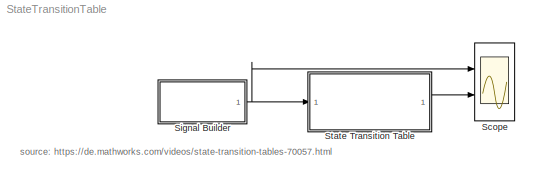
MODEL StateTransitionTable
KIND model
BLOCK [Scope] Scope
  NumInputPorts = 2
  Ports = [2]
  SID = 4
  ScopeSpecificationString = Simulink.scopes.TimeScopeBlockCfg('CurrentConfiguration', extmgr.ConfigurationSet(extmgr.Configuration('Core','General UI',true),extmgr.Configuration('Core','Source UI',true),extmgr.Configuration('Sources','WiredSimulink',true),extmgr.Configuration('Visuals','Time Domain',true,'SerializedDisplays',{struct('MinYLimReal','-1.25','MaxYLimReal','1.25','YLabelReal','','MinYLimMag','0.00000','MaxYLimMag...<+1382ch>
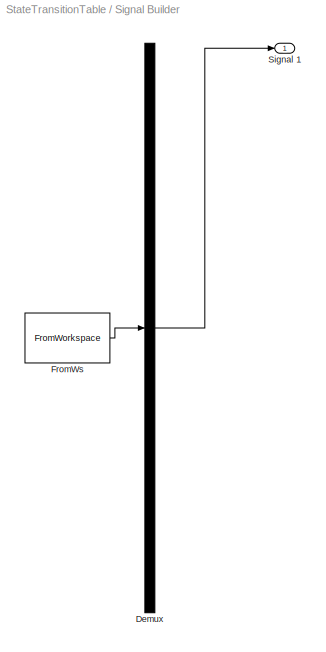
BLOCK [SubSystem] Signal Builder
  ClipboardFcn = sigbuilder_block('clipboard');
  CloseFcn = sigbuilder_block('close');
  ContinueFcn = sigbuilder_block('continue');
  CopyFcn = sigbuilder_block('copy');
  DeleteFcn = sigbuilder_block('delete');
  LoadFcn = sigbuilder_block('load');
  MaskHideContents = on
  ModelCloseFcn = sigbuilder_block('modelClose');
  NameChangeFcn = sigbuilder_block('namechange');
  OpenFcn = sigbuilder_block('open',[404 117.5 550.5 362.5 ]);
  PauseFcn = sigbuilder_block('pause');
  Ports = [0, 1]
  PreSaveFcn = sigbuilder_block('preSave');
  RequestExecContextInheritance = off
  SID = 3
  StartFcn = sigbuilder_block('start');
  StopFcn = sigbuilder_block('stop');
  Tag = STV Subsys
  Variant = off
BLOCK [Demux] Signal Builder/Demux
  Outputs = 1
  Ports = [1, 1]
  SID = 3:1
  Tag = STV Demux
BLOCK [FromWorkspace] Signal Builder/FromWs
  SID = 3:2
  SampleTime = 0
  SigBuilderData = DataTag0
  Tag = STV FromWs
  VariableName = tuvar
  VnvData = DataTag1
  ZeroCross = on
BLOCK [Outport] Signal Builder/Signal 1
  IconDisplay = Port number
  SID = 3:3
  Tag = STV Outport
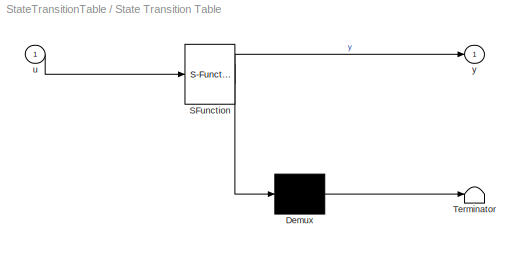
BLOCK [SubSystem] State Transition Table
  ErrorFcn = Stateflow.Translate.translate
  PermitHierarchicalResolution = ExplicitOnly
  Ports = [1, 1]
  RequestExecContextInheritance = off
  SFBlockType = State Transition Table
  SID = 2
  TreatAsAtomicUnit = on
  Variant = off
BLOCK [Demux] State Transition Table/ Demux 
  Outputs = 1
  Ports = [1, 1]
  SID = 2::94
BLOCK [S-Function] State Transition Table/ SFunction 
  EnableBusSupport = on
  FunctionName = sf_sfun
  PortCounts = [1 2]
  Ports = [1, 2]
  SFunctionDeploymentMode = off
  SID = 2::93
  Tag = Stateflow S-Function StateTransitionTable 1
BLOCK [Terminator] State Transition Table/ Terminator 
  SID = 2::95
BLOCK [Inport] State Transition Table/u
  IconDisplay = Port number
  SID = 2::97
BLOCK [Outport] State Transition Table/y
  IconDisplay = Port number
  SID = 2::98
ANNOTATION (root): source: https://de.mathworks.com/videos/state-transition-tables-70057.html
LINE Signal Builder/Demux:1 -> Signal Builder/Signal 1:1
LINE Signal Builder/FromWs:1 -> Signal Builder/Demux:1
NET Signal Builder:1 -> Scope:1, State Transition Table:1
LINE State Transition Table/ Demux :1 -> State Transition Table/ Terminator :1
LINE State Transition Table/ SFunction :1 -> State Transition Table/ Demux :1
LINE State Transition Table/ SFunction :2 -> State Transition Table/y:1
LINE State Transition Table/u:1 -> State Transition Table/ SFunction :1
LINE State Transition Table:1 -> Scope:2
note: NET lines group one-source signal fan-out (src -> all destinations, sorted); 1:1 wires keep LINE
CHART State Transition Table states=5 transitions=9
  STATE_LABEL 'Neutral\\nentry: y = -1;'
  STATE_LABEL 'Active\\nentry: y = 1;'
  STATE_LABEL 'Wait\\nentry: y = 0;'
  STATE_LABEL 'Wait'
  STATE_LABEL 'Idle'
